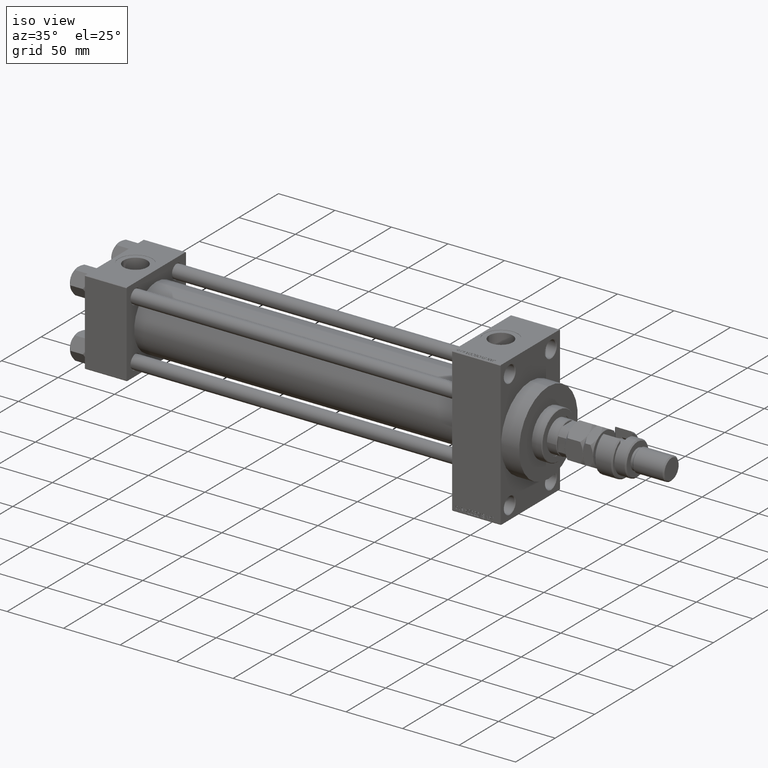
[diagram: clean part render]
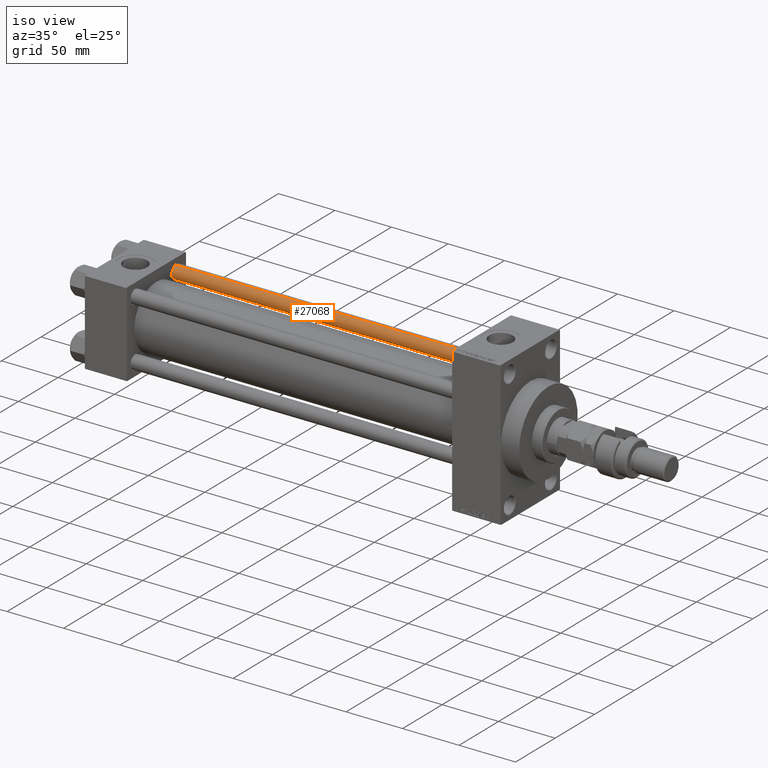
[diagram: same view with one face highlighted and labeled with its STEP entity id]
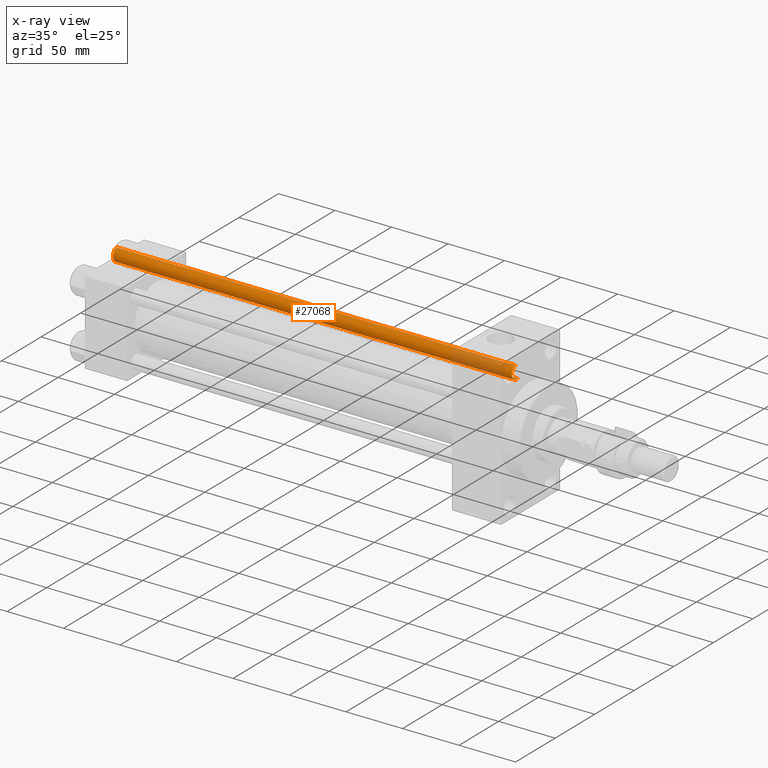
[diagram: x-ray of the same camera — body ghosted, the highlighted face saturated]
A machine part, iso view. The second image highlights one B-rep face of the part: STEP entity #27068.
The next image is the same camera in x-ray: the body ghosted, the highlighted face saturated — about 14% of this face is hidden behind the body in this view.
In plain terms, the highlighted cylindrical surface (edge-blend (fillet) strip) has radius 6 mm, axis along (-1, -0, 0).
Its self-contained STEP definition (entity closure, byte-faithful):
#582 = CARTESIAN_POINT ( 'NONE',  ( 6.000000000000000888, 7.347880794884120722E-16, 0.5000000000000559552 ) ) ;
#826 = VERTEX_POINT ( 'NONE', #44608 ) ;
#1873 = DIRECTION ( 'NONE',  ( -0.000000000000000000, -0.000000000000000000, -1.000000000000000000 ) ) ;
#5500 = AXIS2_PLACEMENT_3D ( 'NONE', #47670, #1873, #39013 ) ;
#5778 = ORIENTED_EDGE ( 'NONE', *, *, #18262, .F. ) ;
#5960 = CARTESIAN_POINT ( 'NONE',  ( 0.000000000000000000, 0.000000000000000000, 0.5000000000000559552 ) ) ;
#6234 = EDGE_LOOP ( 'NONE', ( #5778, #26582, #15491, #27467 ) ) ;
#6503 = LINE ( 'NONE', #21699, #35745 ) ;
#6879 = CIRCLE ( 'NONE', #26290, 6.000000000000000888 ) ;
#12118 = EDGE_CURVE ( 'NONE', #826, #45831, #6879, .T. ) ;
#14621 = LINE ( 'NONE', #21728, #27996 ) ;
#15491 = ORIENTED_EDGE ( 'NONE', *, *, #45723, .T. ) ;
#16329 = FACE_OUTER_BOUND ( 'NONE', #6234, .T. ) ;
#16892 = DIRECTION ( 'NONE',  ( 0.000000000000000000, 0.000000000000000000, -1.000000000000000000 ) ) ;
#17863 = DIRECTION ( 'NONE',  ( -0.000000000000000000, -0.000000000000000000, 1.000000000000000000 ) ) ;
#18262 = EDGE_CURVE ( 'NONE', #826, #30646, #14621, .T. ) ;
#20406 = EDGE_CURVE ( 'NONE', #32602, #30646, #23249, .T. ) ;
#21094 = CARTESIAN_POINT ( 'NONE',  ( -6.000000000000000888, 0.000000000000000000, 0.5000000000000559552 ) ) ;
#21699 = CARTESIAN_POINT ( 'NONE',  ( -6.000000000000000888, 0.000000000000000000, 354.0000000000000000 ) ) ;
#21728 = CARTESIAN_POINT ( 'NONE',  ( 6.000000000000000888, 7.347880794884120722E-16, 354.0000000000000000 ) ) ;
#21948 = DIRECTION ( 'NONE',  ( -0.000000000000000000, -0.000000000000000000, -1.000000000000000000 ) ) ;
#23249 = CIRCLE ( 'NONE', #26469, 6.000000000000000888 ) ;
#26290 = AXIS2_PLACEMENT_3D ( 'NONE', #36366, #16892, #27797 ) ;
#26469 = AXIS2_PLACEMENT_3D ( 'NONE', #5960, #17863, #40869 ) ;
#26582 = ORIENTED_EDGE ( 'NONE', *, *, #12118, .T. ) ;
#27068 = ADVANCED_FACE ( 'NONE', ( #16329 ), #32267, .T. ) ;
#27467 = ORIENTED_EDGE ( 'NONE', *, *, #20406, .T. ) ;
#27797 = DIRECTION ( 'NONE',  ( 1.000000000000000000, 0.000000000000000000, 0.000000000000000000 ) ) ;
#27996 = VECTOR ( 'NONE', #37137, 1000.000000000000000 ) ;
#30646 = VERTEX_POINT ( 'NONE', #582 ) ;
#32267 = CYLINDRICAL_SURFACE ( 'NONE', #5500, 6.000000000000000888 ) ;
#32602 = VERTEX_POINT ( 'NONE', #21094 ) ;
#35745 = VECTOR ( 'NONE', #21948, 1000.000000000000000 ) ;
#36366 = CARTESIAN_POINT ( 'NONE',  ( 0.000000000000000000, 0.000000000000000000, 353.5000000000000000 ) ) ;
#37137 = DIRECTION ( 'NONE',  ( -0.000000000000000000, -0.000000000000000000, -1.000000000000000000 ) ) ;
#39013 = DIRECTION ( 'NONE',  ( -1.000000000000000000, 0.000000000000000000, 0.000000000000000000 ) ) ;
#40869 = DIRECTION ( 'NONE',  ( 1.000000000000000000, 0.000000000000000000, 0.000000000000000000 ) ) ;
#44608 = CARTESIAN_POINT ( 'NONE',  ( 6.000000000000000888, 7.347880794884120722E-16, 353.5000000000000000 ) ) ;
#45723 = EDGE_CURVE ( 'NONE', #45831, #32602, #6503, .T. ) ;
#45831 = VERTEX_POINT ( 'NONE', #49994 ) ;
#47670 = CARTESIAN_POINT ( 'NONE',  ( 0.000000000000000000, 0.000000000000000000, 354.0000000000000000 ) ) ;
#49994 = CARTESIAN_POINT ( 'NONE',  ( -6.000000000000000888, 0.000000000000000000, 353.5000000000000000 ) ) ;